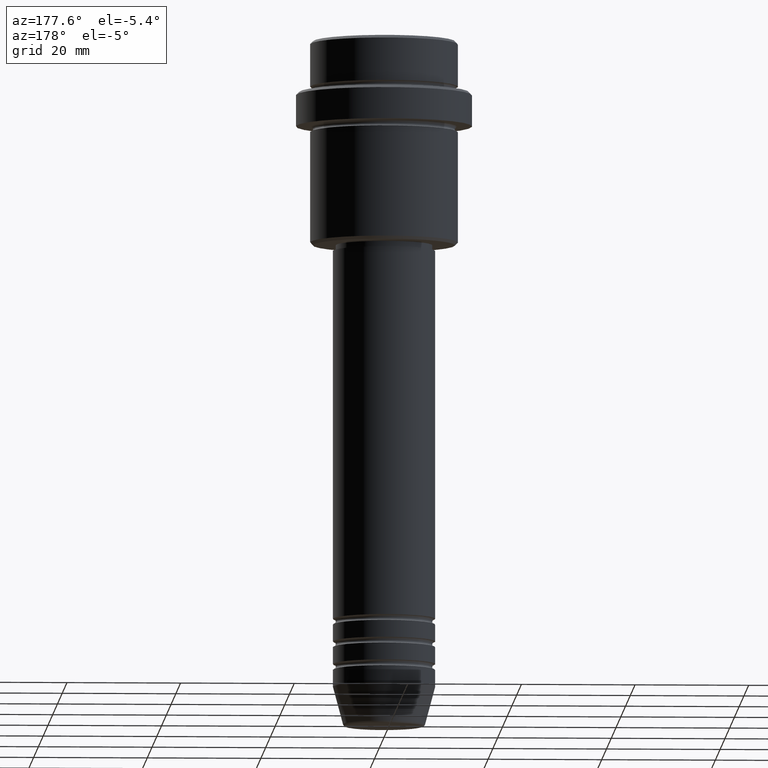
[diagram: clean part render]
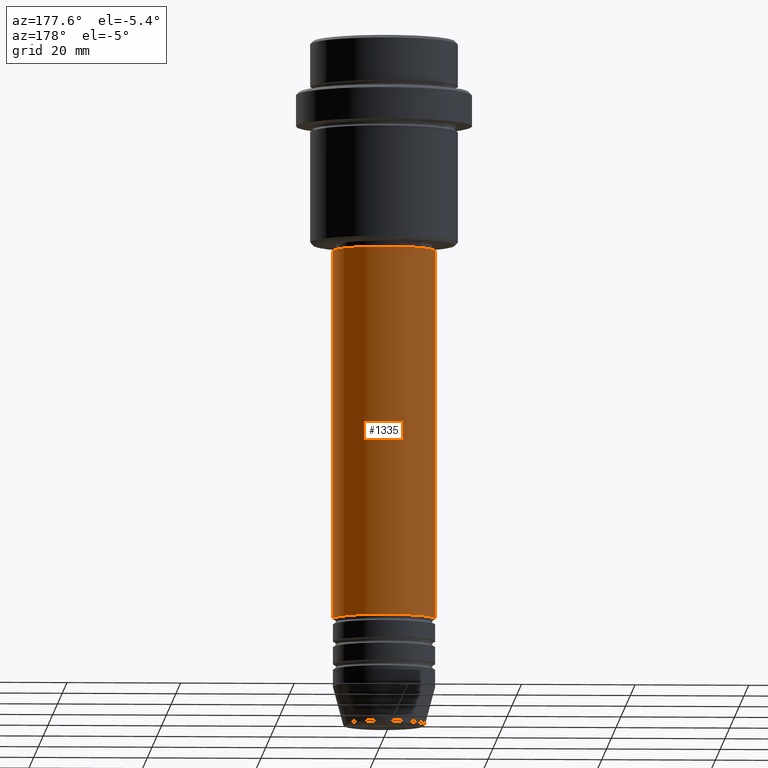
[diagram: same view with one face highlighted and labeled with its STEP entity id]
A machine part, auxiliary view. The second image highlights one B-rep face of the part: STEP entity #1335.
In plain terms, the highlighted cylindrical surface (partial cylindrical patch) has radius 9 mm, axis along (-0, -0, 1).
Its self-contained STEP definition (entity closure, byte-faithful):
#3 = EDGE_CURVE ( 'NONE', #261, #849, #1242, .T. ) ;
#32 = CYLINDRICAL_SURFACE ( 'NONE', #573, 9.000000000000001776 ) ;
#42 = CARTESIAN_POINT ( 'NONE',  ( 0.000000000000000000, 0.000000000000000000, -101.9999999999999005 ) ) ;
#55 = CARTESIAN_POINT ( 'NONE',  ( -9.000000000000000000, 1.102182119232617714E-15, -101.9999999999999005 ) ) ;
#208 = VERTEX_POINT ( 'NONE', #636 ) ;
#261 = VERTEX_POINT ( 'NONE', #546 ) ;
#386 = CARTESIAN_POINT ( 'NONE',  ( -9.000000000000001776, 1.102182119232617911E-15, 0.000000000000000000 ) ) ;
#388 = EDGE_LOOP ( 'NONE', ( #1297, #694, #540, #943 ) ) ;
#397 = DIRECTION ( 'NONE',  ( 1.000000000000000000, 0.000000000000000000, 0.000000000000000000 ) ) ;
#402 = VERTEX_POINT ( 'NONE', #580 ) ;
#411 = CARTESIAN_POINT ( 'NONE',  ( 0.000000000000000000, 0.000000000000000000, -37.00000000000002132 ) ) ;
#471 = DIRECTION ( 'NONE',  ( 1.000000000000000000, 0.000000000000000000, 0.000000000000000000 ) ) ;
#475 = CIRCLE ( 'NONE', #1339, 9.000000000000001776 ) ;
#484 = CARTESIAN_POINT ( 'NONE',  ( 0.000000000000000000, 0.000000000000000000, 0.000000000000000000 ) ) ;
#531 = EDGE_CURVE ( 'NONE', #849, #402, #812, .T. ) ;
#540 = ORIENTED_EDGE ( 'NONE', *, *, #1017, .F. ) ;
#545 = VECTOR ( 'NONE', #1005, 1000.000000000000000 ) ;
#546 = CARTESIAN_POINT ( 'NONE',  ( 9.000000000000000000, 0.000000000000000000, -101.9999999999999005 ) ) ;
#573 = AXIS2_PLACEMENT_3D ( 'NONE', #484, #691, #471 ) ;
#580 = CARTESIAN_POINT ( 'NONE',  ( -9.000000000000001776, 1.102182119232617911E-15, -37.00000000000002132 ) ) ;
#636 = CARTESIAN_POINT ( 'NONE',  ( 9.000000000000001776, 0.000000000000000000, -37.00000000000002132 ) ) ;
#691 = DIRECTION ( 'NONE',  ( -0.000000000000000000, -0.000000000000000000, 1.000000000000000000 ) ) ;
#694 = ORIENTED_EDGE ( 'NONE', *, *, #531, .T. ) ;
#743 = VECTOR ( 'NONE', #1036, 1000.000000000000000 ) ;
#793 = CARTESIAN_POINT ( 'NONE',  ( 9.000000000000001776, 0.000000000000000000, 0.000000000000000000 ) ) ;
#812 = LINE ( 'NONE', #386, #743 ) ;
#849 = VERTEX_POINT ( 'NONE', #55 ) ;
#895 = FACE_OUTER_BOUND ( 'NONE', #388, .T. ) ;
#943 = ORIENTED_EDGE ( 'NONE', *, *, #1273, .F. ) ;
#989 = AXIS2_PLACEMENT_3D ( 'NONE', #42, #1369, #1006 ) ;
#1005 = DIRECTION ( 'NONE',  ( -0.000000000000000000, -0.000000000000000000, 1.000000000000000000 ) ) ;
#1006 = DIRECTION ( 'NONE',  ( 1.000000000000000000, 0.000000000000000000, 0.000000000000000000 ) ) ;
#1017 = EDGE_CURVE ( 'NONE', #208, #402, #475, .T. ) ;
#1018 = LINE ( 'NONE', #793, #545 ) ;
#1036 = DIRECTION ( 'NONE',  ( -0.000000000000000000, -0.000000000000000000, 1.000000000000000000 ) ) ;
#1242 = CIRCLE ( 'NONE', #989, 9.000000000000000000 ) ;
#1273 = EDGE_CURVE ( 'NONE', #261, #208, #1018, .T. ) ;
#1297 = ORIENTED_EDGE ( 'NONE', *, *, #3, .T. ) ;
#1335 = ADVANCED_FACE ( 'NONE', ( #895 ), #32, .T. ) ;
#1339 = AXIS2_PLACEMENT_3D ( 'NONE', #411, #1393, #397 ) ;
#1369 = DIRECTION ( 'NONE',  ( -0.000000000000000000, -0.000000000000000000, 1.000000000000000000 ) ) ;
#1393 = DIRECTION ( 'NONE',  ( -0.000000000000000000, -0.000000000000000000, 1.000000000000000000 ) ) ;